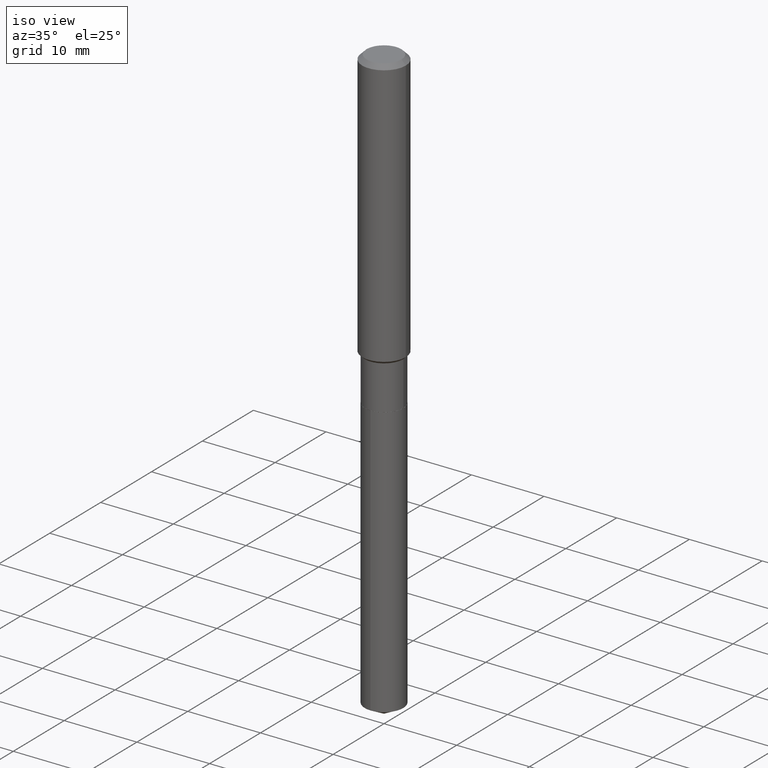
[diagram: clean part render]
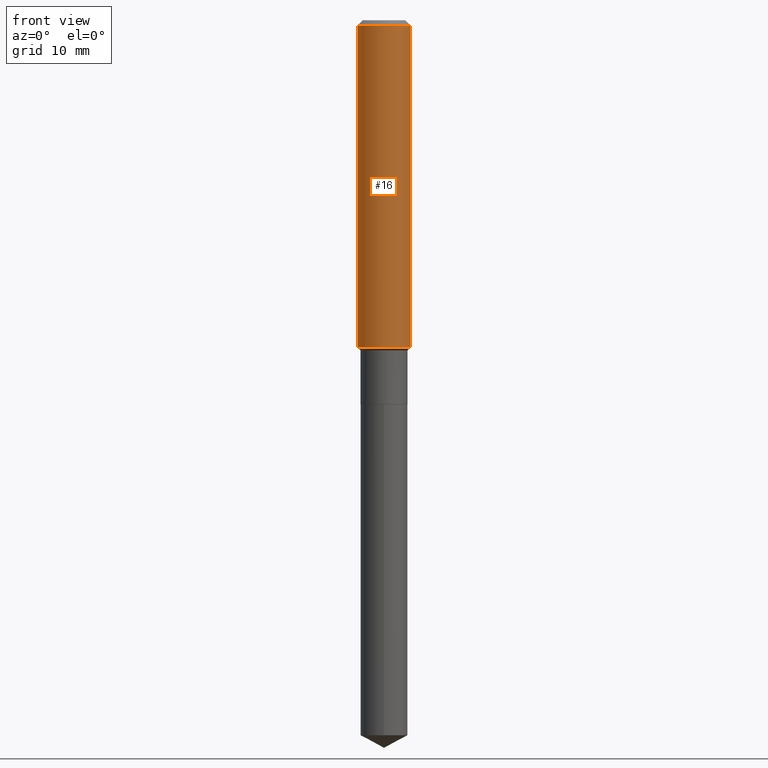
[diagram: tour spotlight — one face highlighted and labeled with its STEP entity id]
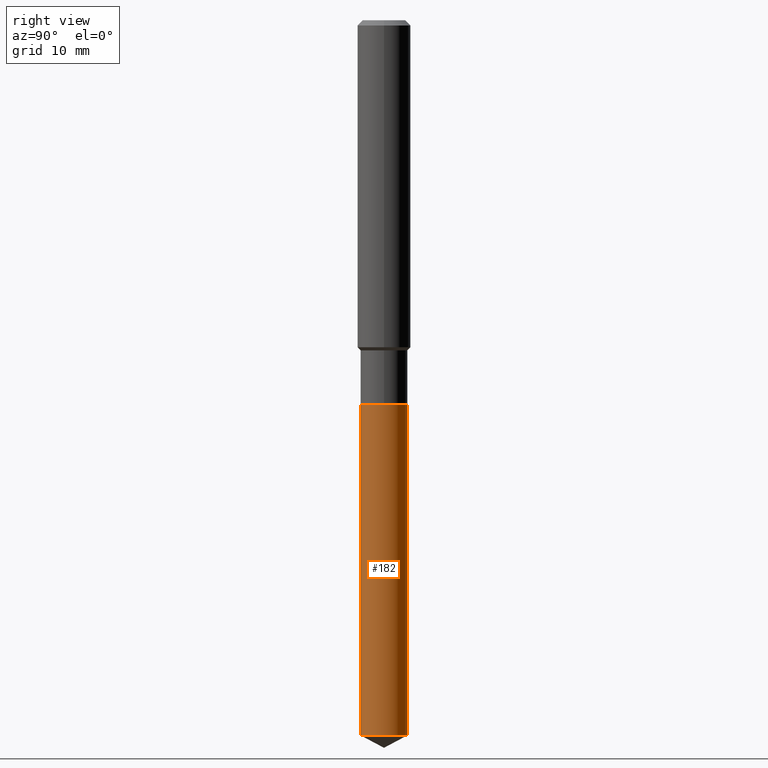
[diagram: tour spotlight — one face highlighted and labeled with its STEP entity id]
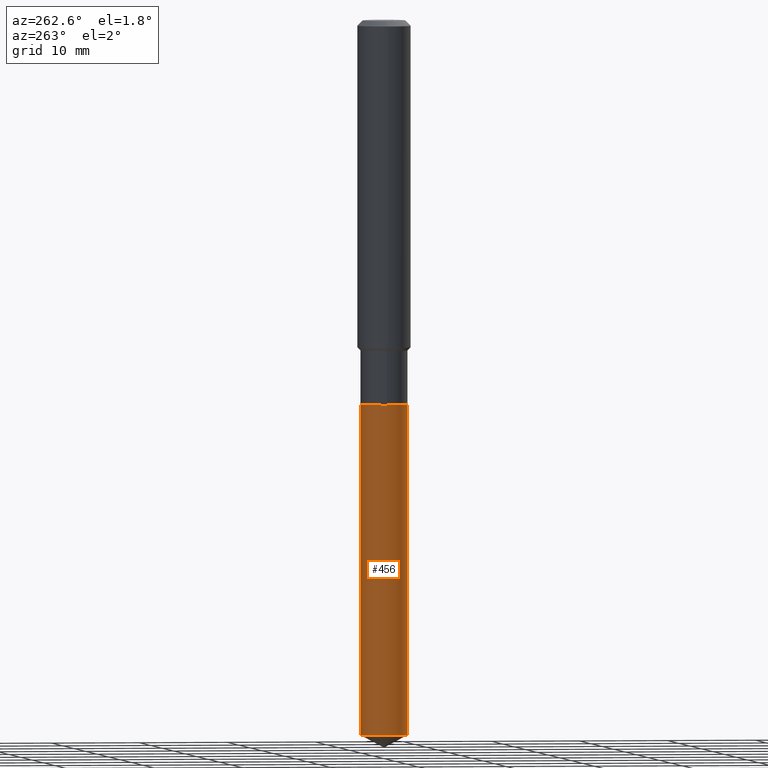
[diagram: tour spotlight — one face highlighted and labeled with its STEP entity id]
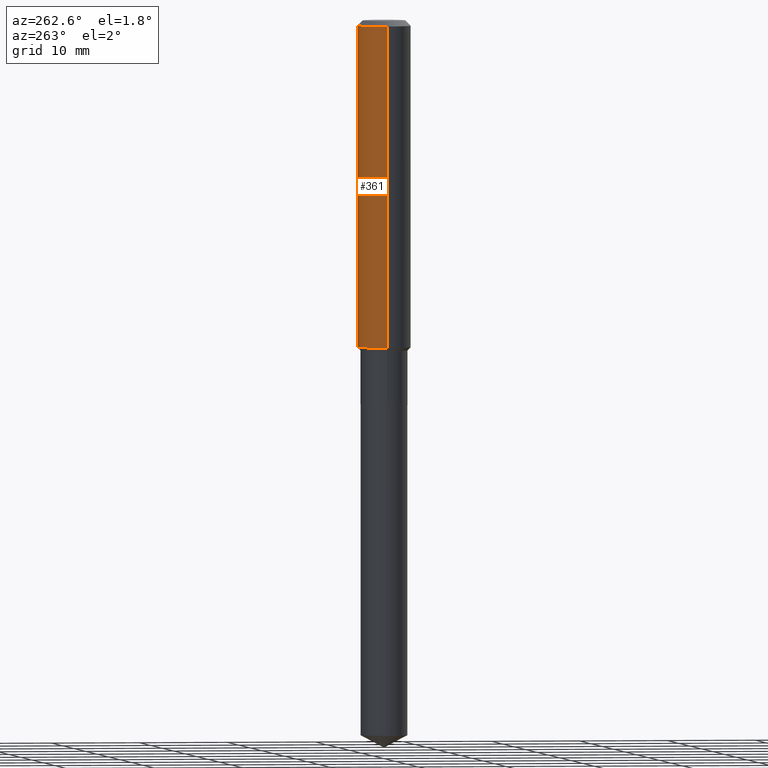
[diagram: tour spotlight — one face highlighted and labeled with its STEP entity id]
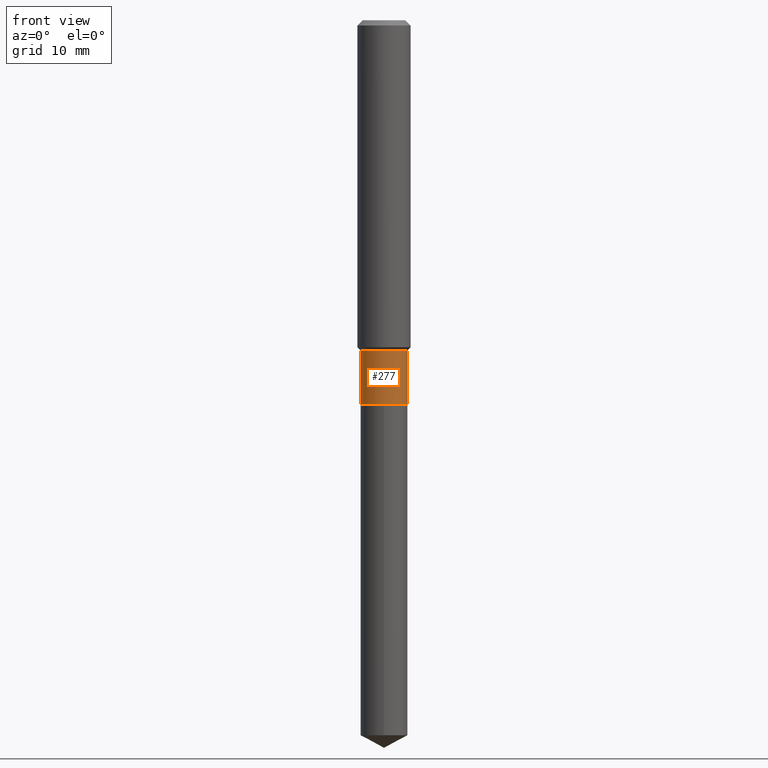
[diagram: tour spotlight — one face highlighted and labeled with its STEP entity id]
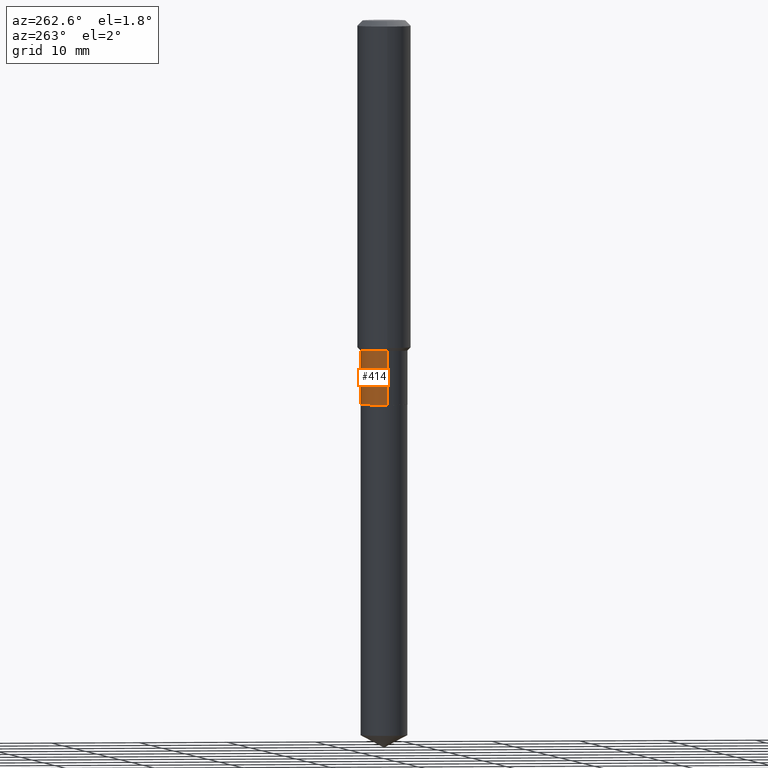
[diagram: tour spotlight — one face highlighted and labeled with its STEP entity id]
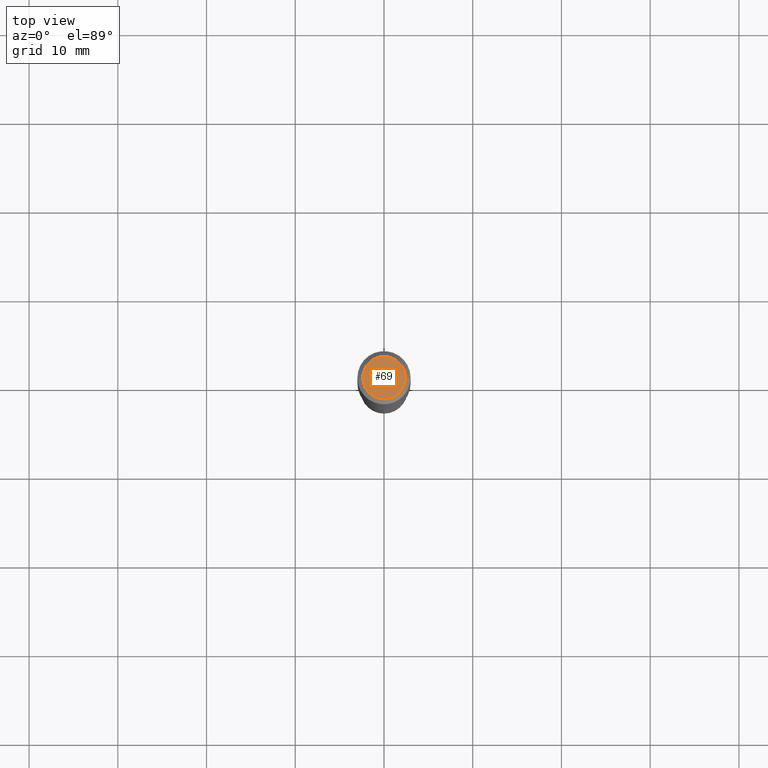
[diagram: tour spotlight — one face highlighted and labeled with its STEP entity id]
A machine part: a face-by-face anatomy tour. The part has 17 B-rep faces; the first image is the clean iso view, then the 7 largest visible faces are spotlighted one at a time (largest first), each with its STEP entity span.

Face 1 — front view, entity #16. In plain terms, the highlighted cylindrical surface (edge-blend (fillet) strip) has radius 2.9997 mm, axis along (-0, 0, 1).
Definition (entity closure, byte-faithful):
#15 = AXIS2_PLACEMENT_3D ( 'NONE', #120, #443, #450 ) ;
#16 = ADVANCED_FACE ( 'NONE', ( #459 ), #125, .T. ) ;
#17 = CARTESIAN_POINT ( 'NONE',  ( 0.000000000000000000, 0.000000000000000000, 0.000000000000000000 ) ) ;
#19 = DIRECTION ( 'NONE',  ( -2.445468806185136597E-29, 3.491481338843145583E-15, 1.000000000000000000 ) ) ;
#27 = AXIS2_PLACEMENT_3D ( 'NONE', #379, #310, #240 ) ;
#41 = CARTESIAN_POINT ( 'NONE',  ( -0.1181000000000001632, -4.226813877661782197E-15, -1.450949999999999962 ) ) ;
#52 = VERTEX_POINT ( 'NONE', #285 ) ;
#54 = EDGE_CURVE ( 'NONE', #52, #131, #247, .T. ) ;
#58 = DIRECTION ( 'NONE',  ( -2.445468806185136877E-29, 3.491481338843145188E-15, 1.000000000000000000 ) ) ;
#87 = DIRECTION ( 'NONE',  ( 1.000000000000000000, -6.982962677686266711E-15, 4.876176775795936353E-29 ) ) ;
#120 = CARTESIAN_POINT ( 'NONE',  ( 3.548252964334323940E-29, -5.065964848594461971E-15, -1.450949999999999962 ) ) ;
#125 = CYLINDRICAL_SURFACE ( 'NONE', #249, 0.1181000000000000799 ) ;
#126 = EDGE_CURVE ( 'NONE', #380, #154, #254, .T. ) ;
#131 = VERTEX_POINT ( 'NONE', #472 ) ;
#154 = VERTEX_POINT ( 'NONE', #177 ) ;
#167 = ORIENTED_EDGE ( 'NONE', *, *, #406, .T. ) ;
#177 = CARTESIAN_POINT ( 'NONE',  ( -0.1180999999999999966, -1.735065847976289334E-15, -0.02362000000000014088 ) ) ;
#207 = VECTOR ( 'NONE', #358, 39.37007874015748143 ) ;
#240 = DIRECTION ( 'NONE',  ( 1.000000000000000000, -6.982962677686266711E-15, 0.000000000000000000 ) ) ;
#247 = LINE ( 'NONE', #396, #362 ) ;
#249 = AXIS2_PLACEMENT_3D ( 'NONE', #17, #19, #87 ) ;
#254 = LINE ( 'NONE', #327, #207 ) ;
#285 = CARTESIAN_POINT ( 'NONE',  ( 0.1181000000000001632, -5.890652740829211023E-15, -1.450949999999999962 ) ) ;
#300 = ORIENTED_EDGE ( 'NONE', *, *, #442, .F. ) ;
#305 = ORIENTED_EDGE ( 'NONE', *, *, #54, .T. ) ;
#310 = DIRECTION ( 'NONE',  ( -2.445468806185136597E-29, 3.491481338843145583E-15, 1.000000000000000000 ) ) ;
#327 = CARTESIAN_POINT ( 'NONE',  ( -0.1181000000000000799, 8.391509709326788873E-16, -5.809262341591047988E-30 ) ) ;
#344 = CIRCLE ( 'NONE', #27, 0.1180999999999999966 ) ;
#354 = EDGE_LOOP ( 'NONE', ( #390, #167, #305, #300 ) ) ;
#358 = DIRECTION ( 'NONE',  ( -2.445468806185136877E-29, 3.491481338843145188E-15, 1.000000000000000000 ) ) ;
#362 = VECTOR ( 'NONE', #58, 39.37007874015748143 ) ;
#379 = CARTESIAN_POINT ( 'NONE',  ( 5.776197320209327532E-31, -8.246878922347559293E-17, -0.02362000000000014088 ) ) ;
#380 = VERTEX_POINT ( 'NONE', #41 ) ;
#390 = ORIENTED_EDGE ( 'NONE', *, *, #126, .F. ) ;
#396 = CARTESIAN_POINT ( 'NONE',  ( 0.1181000000000000799, -8.246878922347486570E-16, 5.758764772215004644E-30 ) ) ;
#406 = EDGE_CURVE ( 'NONE', #380, #52, #479, .T. ) ;
#442 = EDGE_CURVE ( 'NONE', #154, #131, #344, .T. ) ;
#443 = DIRECTION ( 'NONE',  ( -2.445468806185136597E-29, 3.491481338843145583E-15, 1.000000000000000000 ) ) ;
#450 = DIRECTION ( 'NONE',  ( 1.000000000000000000, -6.982962677686263555E-15, 0.000000000000000000 ) ) ;
#459 = FACE_OUTER_BOUND ( 'NONE', #354, .T. ) ;
#472 = CARTESIAN_POINT ( 'NONE',  ( 0.1180999999999999966, -9.071566814582237199E-16, -0.02362000000000014088 ) ) ;
#479 = CIRCLE ( 'NONE', #15, 0.1181000000000001632 ) ;

Face 2 — right view, entity #182. In plain terms, the highlighted cylindrical surface (edge-blend (fillet) strip) has radius 2.6505 mm, axis along (-0, 0, 1).
Definition (entity closure, byte-faithful):
#14 = CIRCLE ( 'NONE', #478, 0.1043499999999999844 ) ;
#23 = EDGE_CURVE ( 'NONE', #150, #233, #315, .T. ) ;
#24 = CARTESIAN_POINT ( 'NONE',  ( -7.286721554164842150E-16, -0.1043500000000110589, -3.172816120806124296 ) ) ;
#47 = CARTESIAN_POINT ( 'NONE',  ( 7.414513447657420375E-16, 0.1043499999999889100, -3.172816120806125628 ) ) ;
#63 = CARTESIAN_POINT ( 'NONE',  ( 7.759082448504334788E-29, -1.107774293063296886E-14, -3.172816120806124740 ) ) ;
#64 = CARTESIAN_POINT ( 'NONE',  ( 4.168790673903801858E-29, -5.951928238325910137E-15, -1.704699999999999882 ) ) ;
#80 = CARTESIAN_POINT ( 'NONE',  ( 4.168790673903801858E-29, -5.951928238325910137E-15, -1.704699999999999882 ) ) ;
#90 = VECTOR ( 'NONE', #129, 39.37007874015748143 ) ;
#104 = DIRECTION ( 'NONE',  ( -2.445509400597785570E-29, 3.491423205333741467E-15, 1.000000000000000000 ) ) ;
#105 = EDGE_CURVE ( 'NONE', #150, #452, #14, .T. ) ;
#129 = DIRECTION ( 'NONE',  ( -2.445509400597785570E-29, 3.491423205333741862E-15, 1.000000000000000000 ) ) ;
#150 = VERTEX_POINT ( 'NONE', #24 ) ;
#168 = EDGE_CURVE ( 'NONE', #452, #397, #322, .T. ) ;
#175 = ORIENTED_EDGE ( 'NONE', *, *, #105, .T. ) ;
#182 = ADVANCED_FACE ( 'NONE', ( #184 ), #400, .T. ) ;
#184 = FACE_OUTER_BOUND ( 'NONE', #276, .T. ) ;
#213 = DIRECTION ( 'NONE',  ( -6.982962677686265922E-15, -1.000000000000000000, 5.235932905920965262E-15 ) ) ;
#215 = DIRECTION ( 'NONE',  ( -2.445509400597785570E-29, 3.491423205333741467E-15, 1.000000000000000000 ) ) ;
#231 = DIRECTION ( 'NONE',  ( -6.982962677686265922E-15, -1.000000000000000000, 2.617966452960482631E-15 ) ) ;
#233 = VERTEX_POINT ( 'NONE', #401 ) ;
#239 = ORIENTED_EDGE ( 'NONE', *, *, #432, .F. ) ;
#244 = AXIS2_PLACEMENT_3D ( 'NONE', #80, #346, #231 ) ;
#265 = AXIS2_PLACEMENT_3D ( 'NONE', #64, #215, #435 ) ;
#276 = EDGE_LOOP ( 'NONE', ( #175, #428, #239, #417 ) ) ;
#292 = DIRECTION ( 'NONE',  ( -2.445509400597785570E-29, 3.491423205333741862E-15, 1.000000000000000000 ) ) ;
#315 = LINE ( 'NONE', #427, #90 ) ;
#322 = LINE ( 'NONE', #433, #330 ) ;
#324 = CIRCLE ( 'NONE', #244, 0.1043499999999999844 ) ;
#330 = VECTOR ( 'NONE', #292, 39.37007874015748143 ) ;
#346 = DIRECTION ( 'NONE',  ( -2.445509400597785570E-29, 3.491423205333741467E-15, 1.000000000000000000 ) ) ;
#397 = VERTEX_POINT ( 'NONE', #484 ) ;
#400 = CYLINDRICAL_SURFACE ( 'NONE', #265, 0.1043499999999999844 ) ;
#401 = CARTESIAN_POINT ( 'NONE',  ( -7.286721554165200096E-16, -0.1043500000000059519, -1.704699999999999660 ) ) ;
#417 = ORIENTED_EDGE ( 'NONE', *, *, #23, .F. ) ;
#427 = CARTESIAN_POINT ( 'NONE',  ( -7.286721554165200096E-16, -0.1043500000000059519, -1.704699999999999660 ) ) ;
#428 = ORIENTED_EDGE ( 'NONE', *, *, #168, .T. ) ;
#432 = EDGE_CURVE ( 'NONE', #233, #397, #324, .T. ) ;
#433 = CARTESIAN_POINT ( 'NONE',  ( 7.414513447657060458E-16, 0.1043499999999940309, -1.704700000000000326 ) ) ;
#435 = DIRECTION ( 'NONE',  ( -6.982962677686265922E-15, -1.000000000000000000, 2.617966452960482631E-15 ) ) ;
#452 = VERTEX_POINT ( 'NONE', #47 ) ;
#478 = AXIS2_PLACEMENT_3D ( 'NONE', #63, #104, #213 ) ;
#484 = CARTESIAN_POINT ( 'NONE',  ( 7.414513447657423334E-16, 0.1043499999999940447, -1.704700000000000326 ) ) ;

Face 3 — auxiliary view, entity #456. In plain terms, the highlighted cylindrical surface (edge-blend (fillet) strip) has radius 2.6505 mm, axis along (-0, 0, 1).
Definition (entity closure, byte-faithful):
#10 = CARTESIAN_POINT ( 'NONE',  ( 4.168790673903801858E-29, -5.951928238325910137E-15, -1.704699999999999882 ) ) ;
#23 = EDGE_CURVE ( 'NONE', #150, #233, #315, .T. ) ;
#24 = CARTESIAN_POINT ( 'NONE',  ( -7.286721554164842150E-16, -0.1043500000000110589, -3.172816120806124296 ) ) ;
#32 = EDGE_CURVE ( 'NONE', #397, #233, #83, .T. ) ;
#39 = CARTESIAN_POINT ( 'NONE',  ( 7.759082448504334788E-29, -1.107774293063296886E-14, -3.172816120806124740 ) ) ;
#47 = CARTESIAN_POINT ( 'NONE',  ( 7.414513447657420375E-16, 0.1043499999999889100, -3.172816120806125628 ) ) ;
#49 = ORIENTED_EDGE ( 'NONE', *, *, #168, .F. ) ;
#82 = FACE_OUTER_BOUND ( 'NONE', #282, .T. ) ;
#83 = CIRCLE ( 'NONE', #212, 0.1043499999999999844 ) ;
#90 = VECTOR ( 'NONE', #129, 39.37007874015748143 ) ;
#91 = DIRECTION ( 'NONE',  ( -2.445509400597785570E-29, 3.491423205333741467E-15, 1.000000000000000000 ) ) ;
#96 = AXIS2_PLACEMENT_3D ( 'NONE', #10, #389, #122 ) ;
#122 = DIRECTION ( 'NONE',  ( -6.982962677686265922E-15, -1.000000000000000000, 2.617966452960482631E-15 ) ) ;
#129 = DIRECTION ( 'NONE',  ( -2.445509400597785570E-29, 3.491423205333741862E-15, 1.000000000000000000 ) ) ;
#134 = ORIENTED_EDGE ( 'NONE', *, *, #366, .T. ) ;
#149 = DIRECTION ( 'NONE',  ( -2.445509400597785570E-29, 3.491423205333741467E-15, 1.000000000000000000 ) ) ;
#150 = VERTEX_POINT ( 'NONE', #24 ) ;
#168 = EDGE_CURVE ( 'NONE', #452, #397, #322, .T. ) ;
#169 = CYLINDRICAL_SURFACE ( 'NONE', #96, 0.1043499999999999844 ) ;
#173 = DIRECTION ( 'NONE',  ( -6.982962677686265922E-15, -1.000000000000000000, 2.617966452960482631E-15 ) ) ;
#186 = AXIS2_PLACEMENT_3D ( 'NONE', #39, #149, #303 ) ;
#212 = AXIS2_PLACEMENT_3D ( 'NONE', #425, #91, #173 ) ;
#226 = ORIENTED_EDGE ( 'NONE', *, *, #32, .F. ) ;
#233 = VERTEX_POINT ( 'NONE', #401 ) ;
#234 = CIRCLE ( 'NONE', #186, 0.1043499999999999844 ) ;
#282 = EDGE_LOOP ( 'NONE', ( #49, #134, #463, #226 ) ) ;
#292 = DIRECTION ( 'NONE',  ( -2.445509400597785570E-29, 3.491423205333741862E-15, 1.000000000000000000 ) ) ;
#303 = DIRECTION ( 'NONE',  ( -6.982962677686265922E-15, -1.000000000000000000, 5.235932905920965262E-15 ) ) ;
#315 = LINE ( 'NONE', #427, #90 ) ;
#322 = LINE ( 'NONE', #433, #330 ) ;
#330 = VECTOR ( 'NONE', #292, 39.37007874015748143 ) ;
#366 = EDGE_CURVE ( 'NONE', #452, #150, #234, .T. ) ;
#389 = DIRECTION ( 'NONE',  ( -2.445509400597785570E-29, 3.491423205333741467E-15, 1.000000000000000000 ) ) ;
#397 = VERTEX_POINT ( 'NONE', #484 ) ;
#401 = CARTESIAN_POINT ( 'NONE',  ( -7.286721554165200096E-16, -0.1043500000000059519, -1.704699999999999660 ) ) ;
#425 = CARTESIAN_POINT ( 'NONE',  ( 4.168790673903801858E-29, -5.951928238325910137E-15, -1.704699999999999882 ) ) ;
#427 = CARTESIAN_POINT ( 'NONE',  ( -7.286721554165200096E-16, -0.1043500000000059519, -1.704699999999999660 ) ) ;
#433 = CARTESIAN_POINT ( 'NONE',  ( 7.414513447657060458E-16, 0.1043499999999940309, -1.704700000000000326 ) ) ;
#452 = VERTEX_POINT ( 'NONE', #47 ) ;
#456 = ADVANCED_FACE ( 'NONE', ( #82 ), #169, .T. ) ;
#463 = ORIENTED_EDGE ( 'NONE', *, *, #23, .T. ) ;
#484 = CARTESIAN_POINT ( 'NONE',  ( 7.414513447657423334E-16, 0.1043499999999940447, -1.704700000000000326 ) ) ;

Face 4 — auxiliary view, entity #361. In plain terms, the highlighted cylindrical surface (edge-blend (fillet) strip) has radius 2.9997 mm, axis along (-0, 0, 1).
Definition (entity closure, byte-faithful):
#35 = CARTESIAN_POINT ( 'NONE',  ( 5.776197320209327532E-31, -8.246878922347559293E-17, -0.02362000000000014088 ) ) ;
#41 = CARTESIAN_POINT ( 'NONE',  ( -0.1181000000000001632, -4.226813877661782197E-15, -1.450949999999999962 ) ) ;
#52 = VERTEX_POINT ( 'NONE', #285 ) ;
#54 = EDGE_CURVE ( 'NONE', #52, #131, #247, .T. ) ;
#58 = DIRECTION ( 'NONE',  ( -2.445468806185136877E-29, 3.491481338843145188E-15, 1.000000000000000000 ) ) ;
#70 = DIRECTION ( 'NONE',  ( 1.000000000000000000, -6.982962677686266711E-15, 0.000000000000000000 ) ) ;
#75 = DIRECTION ( 'NONE',  ( -2.445468806185136597E-29, 3.491481338843145583E-15, 1.000000000000000000 ) ) ;
#93 = ORIENTED_EDGE ( 'NONE', *, *, #262, .T. ) ;
#101 = AXIS2_PLACEMENT_3D ( 'NONE', #35, #160, #70 ) ;
#106 = CYLINDRICAL_SURFACE ( 'NONE', #436, 0.1181000000000000799 ) ;
#108 = DIRECTION ( 'NONE',  ( 1.000000000000000000, -6.982962677686263555E-15, 0.000000000000000000 ) ) ;
#111 = AXIS2_PLACEMENT_3D ( 'NONE', #439, #75, #108 ) ;
#126 = EDGE_CURVE ( 'NONE', #380, #154, #254, .T. ) ;
#131 = VERTEX_POINT ( 'NONE', #472 ) ;
#154 = VERTEX_POINT ( 'NONE', #177 ) ;
#160 = DIRECTION ( 'NONE',  ( -2.445468806185136597E-29, 3.491481338843145583E-15, 1.000000000000000000 ) ) ;
#177 = CARTESIAN_POINT ( 'NONE',  ( -0.1180999999999999966, -1.735065847976289334E-15, -0.02362000000000014088 ) ) ;
#207 = VECTOR ( 'NONE', #358, 39.37007874015748143 ) ;
#225 = DIRECTION ( 'NONE',  ( -2.445468806185136597E-29, 3.491481338843145583E-15, 1.000000000000000000 ) ) ;
#247 = LINE ( 'NONE', #396, #362 ) ;
#254 = LINE ( 'NONE', #327, #207 ) ;
#262 = EDGE_CURVE ( 'NONE', #52, #380, #323, .T. ) ;
#281 = EDGE_CURVE ( 'NONE', #131, #154, #426, .T. ) ;
#285 = CARTESIAN_POINT ( 'NONE',  ( 0.1181000000000001632, -5.890652740829211023E-15, -1.450949999999999962 ) ) ;
#298 = EDGE_LOOP ( 'NONE', ( #93, #339, #413, #448 ) ) ;
#323 = CIRCLE ( 'NONE', #111, 0.1181000000000001632 ) ;
#327 = CARTESIAN_POINT ( 'NONE',  ( -0.1181000000000000799, 8.391509709326788873E-16, -5.809262341591047988E-30 ) ) ;
#338 = CARTESIAN_POINT ( 'NONE',  ( 0.000000000000000000, 0.000000000000000000, 0.000000000000000000 ) ) ;
#339 = ORIENTED_EDGE ( 'NONE', *, *, #126, .T. ) ;
#358 = DIRECTION ( 'NONE',  ( -2.445468806185136877E-29, 3.491481338843145188E-15, 1.000000000000000000 ) ) ;
#361 = ADVANCED_FACE ( 'NONE', ( #454 ), #106, .T. ) ;
#362 = VECTOR ( 'NONE', #58, 39.37007874015748143 ) ;
#373 = DIRECTION ( 'NONE',  ( 1.000000000000000000, -6.982962677686266711E-15, 4.876176775795936353E-29 ) ) ;
#380 = VERTEX_POINT ( 'NONE', #41 ) ;
#396 = CARTESIAN_POINT ( 'NONE',  ( 0.1181000000000000799, -8.246878922347486570E-16, 5.758764772215004644E-30 ) ) ;
#413 = ORIENTED_EDGE ( 'NONE', *, *, #281, .F. ) ;
#426 = CIRCLE ( 'NONE', #101, 0.1180999999999999966 ) ;
#436 = AXIS2_PLACEMENT_3D ( 'NONE', #338, #225, #373 ) ;
#439 = CARTESIAN_POINT ( 'NONE',  ( 3.548252964334323940E-29, -5.065964848594461971E-15, -1.450949999999999962 ) ) ;
#448 = ORIENTED_EDGE ( 'NONE', *, *, #54, .F. ) ;
#454 = FACE_OUTER_BOUND ( 'NONE', #298, .T. ) ;
#472 = CARTESIAN_POINT ( 'NONE',  ( 0.1180999999999999966, -9.071566814582237199E-16, -0.02362000000000014088 ) ) ;

Face 5 — front view, entity #277. In plain terms, the highlighted cylindrical surface (edge-blend (fillet) strip) has radius 2.6505 mm, axis along (-0, 0, 1).
Definition (entity closure, byte-faithful):
#6 = FACE_OUTER_BOUND ( 'NONE', #314, .T. ) ;
#8 = VERTEX_POINT ( 'NONE', #248 ) ;
#12 = CARTESIAN_POINT ( 'NONE',  ( 0.1043499999999999844, -6.678854653073050255E-15, -1.704200000000000159 ) ) ;
#21 = VECTOR ( 'NONE', #194, 39.37007874015748143 ) ;
#25 = CARTESIAN_POINT ( 'NONE',  ( 3.581878160419369815E-29, -5.113972717003555292E-15, -1.464700000000000113 ) ) ;
#30 = LINE ( 'NONE', #477, #144 ) ;
#31 = DIRECTION ( 'NONE',  ( 1.000000000000000000, -6.982962677686263555E-15, 0.000000000000000000 ) ) ;
#37 = CARTESIAN_POINT ( 'NONE',  ( -0.1043499999999999706, 7.414513447656643348E-16, -5.132908766680992704E-30 ) ) ;
#40 = ORIENTED_EDGE ( 'NONE', *, *, #258, .T. ) ;
#68 = CARTESIAN_POINT ( 'NONE',  ( 0.1043499999999999567, -5.842644872420116914E-15, -1.464700000000000113 ) ) ;
#94 = ORIENTED_EDGE ( 'NONE', *, *, #403, .T. ) ;
#97 = CARTESIAN_POINT ( 'NONE',  ( -0.1043499999999999567, -4.790626262564358219E-15, -1.464700000000000113 ) ) ;
#117 = DIRECTION ( 'NONE',  ( -2.445468806185136597E-29, 3.491481338843145583E-15, 1.000000000000000000 ) ) ;
#139 = EDGE_CURVE ( 'NONE', #172, #286, #404, .T. ) ;
#144 = VECTOR ( 'NONE', #268, 39.37007874015748143 ) ;
#157 = AXIS2_PLACEMENT_3D ( 'NONE', #185, #117, #480 ) ;
#172 = VERTEX_POINT ( 'NONE', #97 ) ;
#185 = CARTESIAN_POINT ( 'NONE',  ( 0.000000000000000000, 0.000000000000000000, 0.000000000000000000 ) ) ;
#194 = DIRECTION ( 'NONE',  ( -2.445468806185136877E-29, 3.491481338843145188E-15, 1.000000000000000000 ) ) ;
#248 = CARTESIAN_POINT ( 'NONE',  ( -0.1043499999999999844, -4.790626262564358219E-15, -1.704200000000000159 ) ) ;
#258 = EDGE_CURVE ( 'NONE', #444, #286, #30, .T. ) ;
#268 = DIRECTION ( 'NONE',  ( -2.445468806185136877E-29, 3.491481338843145188E-15, 1.000000000000000000 ) ) ;
#270 = LINE ( 'NONE', #37, #21 ) ;
#277 = ADVANCED_FACE ( 'NONE', ( #6 ), #408, .T. ) ;
#284 = AXIS2_PLACEMENT_3D ( 'NONE', #25, #291, #476 ) ;
#286 = VERTEX_POINT ( 'NONE', #68 ) ;
#291 = DIRECTION ( 'NONE',  ( -2.445468806185136597E-29, 3.491481338843145583E-15, 1.000000000000000000 ) ) ;
#314 = EDGE_LOOP ( 'NONE', ( #371, #94, #40, #319 ) ) ;
#319 = ORIENTED_EDGE ( 'NONE', *, *, #139, .F. ) ;
#353 = CIRCLE ( 'NONE', #473, 0.1043499999999999844 ) ;
#369 = DIRECTION ( 'NONE',  ( -2.445468806185136597E-29, 3.491481338843145583E-15, 1.000000000000000000 ) ) ;
#371 = ORIENTED_EDGE ( 'NONE', *, *, #387, .F. ) ;
#387 = EDGE_CURVE ( 'NONE', #8, #172, #270, .T. ) ;
#403 = EDGE_CURVE ( 'NONE', #8, #444, #353, .T. ) ;
#404 = CIRCLE ( 'NONE', #284, 0.1043499999999999567 ) ;
#408 = CYLINDRICAL_SURFACE ( 'NONE', #157, 0.1043499999999999706 ) ;
#444 = VERTEX_POINT ( 'NONE', #12 ) ;
#447 = CARTESIAN_POINT ( 'NONE',  ( 4.167567939500710177E-29, -5.950182497656488633E-15, -1.704200000000000159 ) ) ;
#473 = AXIS2_PLACEMENT_3D ( 'NONE', #447, #369, #31 ) ;
#476 = DIRECTION ( 'NONE',  ( 1.000000000000000000, -6.982962677686265922E-15, 0.000000000000000000 ) ) ;
#477 = CARTESIAN_POINT ( 'NONE',  ( 0.1043499999999999706, -7.286721554165617206E-16, 5.088290465543058008E-30 ) ) ;
#480 = DIRECTION ( 'NONE',  ( 1.000000000000000000, -6.982962677686266711E-15, 4.876176775795936353E-29 ) ) ;

Face 6 — auxiliary view, entity #414. In plain terms, the highlighted cylindrical surface (edge-blend (fillet) strip) has radius 2.6505 mm, axis along (-0, 0, 1).
Definition (entity closure, byte-faithful):
#8 = VERTEX_POINT ( 'NONE', #248 ) ;
#12 = CARTESIAN_POINT ( 'NONE',  ( 0.1043499999999999844, -6.678854653073050255E-15, -1.704200000000000159 ) ) ;
#21 = VECTOR ( 'NONE', #194, 39.37007874015748143 ) ;
#30 = LINE ( 'NONE', #477, #144 ) ;
#37 = CARTESIAN_POINT ( 'NONE',  ( -0.1043499999999999706, 7.414513447656643348E-16, -5.132908766680992704E-30 ) ) ;
#43 = CIRCLE ( 'NONE', #266, 0.1043499999999999567 ) ;
#68 = CARTESIAN_POINT ( 'NONE',  ( 0.1043499999999999567, -5.842644872420116914E-15, -1.464700000000000113 ) ) ;
#74 = AXIS2_PLACEMENT_3D ( 'NONE', #412, #376, #416 ) ;
#97 = CARTESIAN_POINT ( 'NONE',  ( -0.1043499999999999567, -4.790626262564358219E-15, -1.464700000000000113 ) ) ;
#121 = ORIENTED_EDGE ( 'NONE', *, *, #429, .T. ) ;
#144 = VECTOR ( 'NONE', #268, 39.37007874015748143 ) ;
#145 = DIRECTION ( 'NONE',  ( -2.445468806185136597E-29, 3.491481338843145583E-15, 1.000000000000000000 ) ) ;
#153 = CYLINDRICAL_SURFACE ( 'NONE', #256, 0.1043499999999999706 ) ;
#172 = VERTEX_POINT ( 'NONE', #97 ) ;
#194 = DIRECTION ( 'NONE',  ( -2.445468806185136877E-29, 3.491481338843145188E-15, 1.000000000000000000 ) ) ;
#222 = DIRECTION ( 'NONE',  ( 1.000000000000000000, -6.982962677686265922E-15, 0.000000000000000000 ) ) ;
#223 = ORIENTED_EDGE ( 'NONE', *, *, #387, .T. ) ;
#248 = CARTESIAN_POINT ( 'NONE',  ( -0.1043499999999999844, -4.790626262564358219E-15, -1.704200000000000159 ) ) ;
#256 = AXIS2_PLACEMENT_3D ( 'NONE', #299, #145, #407 ) ;
#258 = EDGE_CURVE ( 'NONE', #444, #286, #30, .T. ) ;
#266 = AXIS2_PLACEMENT_3D ( 'NONE', #297, #488, #222 ) ;
#268 = DIRECTION ( 'NONE',  ( -2.445468806185136877E-29, 3.491481338843145188E-15, 1.000000000000000000 ) ) ;
#270 = LINE ( 'NONE', #37, #21 ) ;
#271 = EDGE_LOOP ( 'NONE', ( #121, #223, #335, #481 ) ) ;
#286 = VERTEX_POINT ( 'NONE', #68 ) ;
#297 = CARTESIAN_POINT ( 'NONE',  ( 3.581878160419369815E-29, -5.113972717003555292E-15, -1.464700000000000113 ) ) ;
#299 = CARTESIAN_POINT ( 'NONE',  ( 0.000000000000000000, 0.000000000000000000, 0.000000000000000000 ) ) ;
#318 = CIRCLE ( 'NONE', #74, 0.1043499999999999844 ) ;
#329 = FACE_OUTER_BOUND ( 'NONE', #271, .T. ) ;
#335 = ORIENTED_EDGE ( 'NONE', *, *, #395, .F. ) ;
#376 = DIRECTION ( 'NONE',  ( -2.445468806185136597E-29, 3.491481338843145583E-15, 1.000000000000000000 ) ) ;
#387 = EDGE_CURVE ( 'NONE', #8, #172, #270, .T. ) ;
#395 = EDGE_CURVE ( 'NONE', #286, #172, #43, .T. ) ;
#407 = DIRECTION ( 'NONE',  ( 1.000000000000000000, -6.982962677686266711E-15, 4.876176775795936353E-29 ) ) ;
#412 = CARTESIAN_POINT ( 'NONE',  ( 4.167567939500710177E-29, -5.950182497656488633E-15, -1.704200000000000159 ) ) ;
#414 = ADVANCED_FACE ( 'NONE', ( #329 ), #153, .T. ) ;
#416 = DIRECTION ( 'NONE',  ( 1.000000000000000000, -6.982962677686263555E-15, 0.000000000000000000 ) ) ;
#429 = EDGE_CURVE ( 'NONE', #444, #8, #318, .T. ) ;
#444 = VERTEX_POINT ( 'NONE', #12 ) ;
#477 = CARTESIAN_POINT ( 'NONE',  ( 0.1043499999999999706, -7.286721554165617206E-16, 5.088290465543058008E-30 ) ) ;
#481 = ORIENTED_EDGE ( 'NONE', *, *, #258, .F. ) ;
#488 = DIRECTION ( 'NONE',  ( -2.445468806185136597E-29, 3.491481338843145583E-15, 1.000000000000000000 ) ) ;

Face 7 — top view, entity #69. In plain terms, the highlighted planar face has unit normal (0, -0, -1).
Definition (entity closure, byte-faithful):
#11 = VERTEX_POINT ( 'NONE', #423 ) ;
#13 = DIRECTION ( 'NONE',  ( 1.000000000000000000, -6.982962677686267499E-15, 4.875432709231658792E-29 ) ) ;
#18 = EDGE_CURVE ( 'NONE', #11, #210, #370, .T. ) ;
#60 = DIRECTION ( 'NONE',  ( 2.438088387897960049E-29, -3.491481338843145188E-15, -1.000000000000000000 ) ) ;
#65 = PLANE ( 'NONE',  #123 ) ;
#69 = ADVANCED_FACE ( 'NONE', ( #470 ), #65, .F. ) ;
#71 = ORIENTED_EDGE ( 'NONE', *, *, #18, .T. ) ;
#114 = EDGE_CURVE ( 'NONE', #210, #11, #343, .T. ) ;
#123 = AXIS2_PLACEMENT_3D ( 'NONE', #293, #60, #135 ) ;
#135 = DIRECTION ( 'NONE',  ( -1.000000000000000000, 6.982962677686265922E-15, -4.876176775795935793E-29 ) ) ;
#183 = DIRECTION ( 'NONE',  ( 1.000000000000000000, -6.982962677686267499E-15, 4.875432709231658792E-29 ) ) ;
#205 = CARTESIAN_POINT ( 'NONE',  ( 4.716267017698007905E-46, -6.733579360998555036E-32, -1.928573779297252010E-17 ) ) ;
#210 = VERTEX_POINT ( 'NONE', #405 ) ;
#217 = AXIS2_PLACEMENT_3D ( 'NONE', #360, #475, #183 ) ;
#293 = CARTESIAN_POINT ( 'NONE',  ( 2.358133508849003952E-46, -3.366789680499277518E-32, -9.642868896486260050E-18 ) ) ;
#295 = EDGE_LOOP ( 'NONE', ( #71, #410 ) ) ;
#343 = CIRCLE ( 'NONE', #217, 0.09447999999999998066 ) ;
#352 = DIRECTION ( 'NONE',  ( -2.445468806185136597E-29, 3.491481338843145583E-15, 1.000000000000000000 ) ) ;
#360 = CARTESIAN_POINT ( 'NONE',  ( 4.716267017698007905E-46, -6.733579360998555036E-32, -1.928573779297252010E-17 ) ) ;
#370 = CIRCLE ( 'NONE', #420, 0.09447999999999998066 ) ;
#405 = CARTESIAN_POINT ( 'NONE',  ( 0.09447999999999998066, -7.704367267948738690E-16, -1.928573779296752193E-17 ) ) ;
#410 = ORIENTED_EDGE ( 'NONE', *, *, #114, .T. ) ;
#420 = AXIS2_PLACEMENT_3D ( 'NONE', #205, #352, #13 ) ;
#423 = CARTESIAN_POINT ( 'NONE',  ( -0.09447999999999998066, 7.009847083995354710E-16, -1.928573779297727792E-17 ) ) ;
#470 = FACE_OUTER_BOUND ( 'NONE', #295, .T. ) ;
#475 = DIRECTION ( 'NONE',  ( -2.445468806185136597E-29, 3.491481338843145583E-15, 1.000000000000000000 ) ) ;